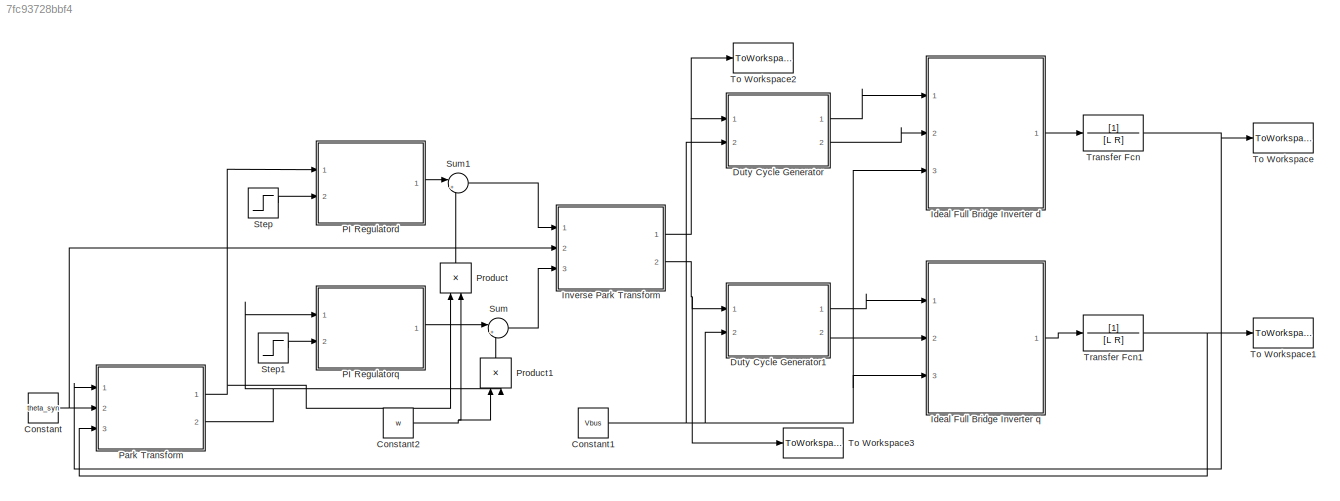
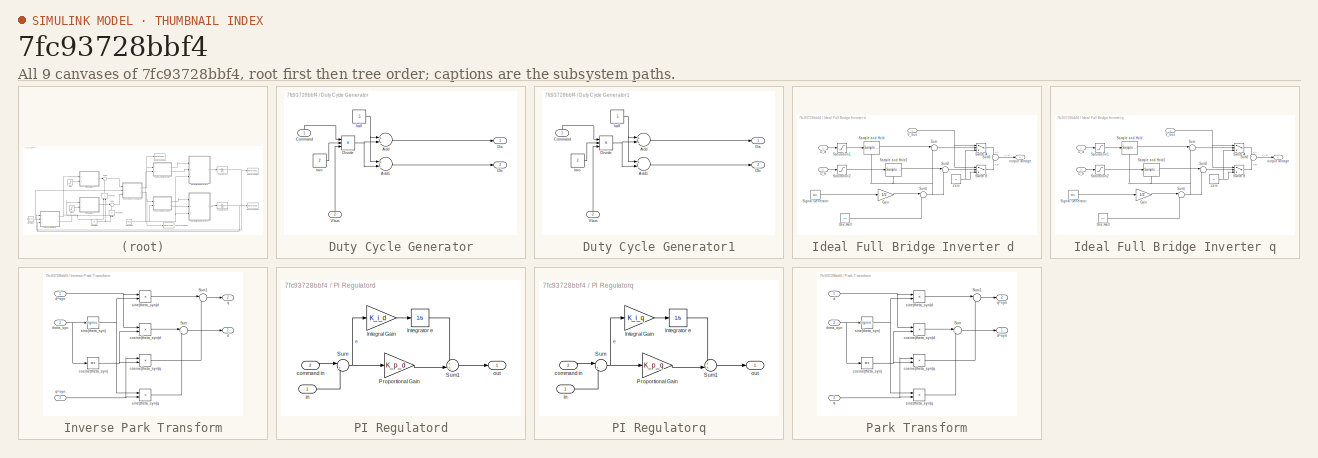
[diagram: thumbnail index - all 9 canvases of the model, root first then tree order]
MODEL slx_7fc93728bbf4
KIND model
CONFIG AbsTol = auto
CONFIG FixedStep = auto
CONFIG MaxStep = auto
CONFIG MinStep = auto
CONFIG RelTol = 1e-3
CONFIG SampleTimeConstraint = Unconstrained
CONFIG Solver = VariableStepAuto
CONFIG SolverMode = Auto
CONFIG SolverName = VariableStepAuto
CONFIG StartTime = -.005
CONFIG StopTime = .5
BLOCK [Constant] Constant
  Value = theta_syn
BLOCK [Constant] Constant1
  Value = Vbus
BLOCK [Constant] Constant2
  Value = w
BLOCK [SubSystem] Duty Cycle Generator
  Ports = [2, 2]
  RequestExecContextInheritance = off
  Variant = off
BLOCK [Sum] Duty Cycle Generator/Add
  InputSameDT = off
  OutDataTypeStr = Inherit: Inherit via internal rule
  Ports = [2, 1]
  SaturateOnIntegerOverflow = off
BLOCK [Sum] Duty Cycle Generator/Add1
  InputSameDT = off
  Inputs = +-
  OutDataTypeStr = Inherit: Inherit via internal rule
  Ports = [2, 1]
  SaturateOnIntegerOverflow = off
BLOCK [Inport] Duty Cycle Generator/Command
  IconDisplay = Port number
BLOCK [Outport] Duty Cycle Generator/Da
  IconDisplay = Port number
BLOCK [Outport] Duty Cycle Generator/Db
  IconDisplay = Port number
  Port = 2
BLOCK [Product] Duty Cycle Generator/Divide
  InputSameDT = off
  Inputs = *//
  OutDataTypeStr = Inherit: Inherit via internal rule
  Ports = [3, 1]
  RndMeth = Floor
  SaturateOnIntegerOverflow = off
BLOCK [Inport] Duty Cycle Generator/Vbus
  IconDisplay = Port number
  Port = 2
BLOCK [Constant] Duty Cycle Generator/half
  Value = .5
BLOCK [Constant] Duty Cycle Generator/two
  Value = 2
BLOCK [SubSystem] Duty Cycle Generator1
  Ports = [2, 2]
  RequestExecContextInheritance = off
  Variant = off
BLOCK [Sum] Duty Cycle Generator1/Add
  InputSameDT = off
  OutDataTypeStr = Inherit: Inherit via internal rule
  Ports = [2, 1]
  SaturateOnIntegerOverflow = off
BLOCK [Sum] Duty Cycle Generator1/Add1
  InputSameDT = off
  Inputs = +-
  OutDataTypeStr = Inherit: Inherit via internal rule
  Ports = [2, 1]
  SaturateOnIntegerOverflow = off
BLOCK [Inport] Duty Cycle Generator1/Command
  IconDisplay = Port number
BLOCK [Outport] Duty Cycle Generator1/Da
  IconDisplay = Port number
BLOCK [Outport] Duty Cycle Generator1/Db
  IconDisplay = Port number
  Port = 2
BLOCK [Product] Duty Cycle Generator1/Divide
  InputSameDT = off
  Inputs = *//
  OutDataTypeStr = Inherit: Inherit via internal rule
  Ports = [3, 1]
  RndMeth = Floor
  SaturateOnIntegerOverflow = off
BLOCK [Inport] Duty Cycle Generator1/Vbus
  IconDisplay = Port number
  Port = 2
BLOCK [Constant] Duty Cycle Generator1/half
  Value = .5
BLOCK [Constant] Duty Cycle Generator1/two
  Value = 2
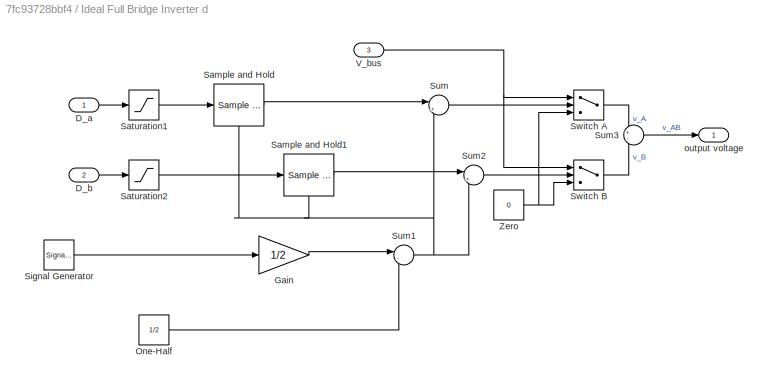
BLOCK [SubSystem] Ideal Full Bridge Inverter d 
  Ports = [3, 1]
  RequestExecContextInheritance = off
  Variant = off
BLOCK [Inport] Ideal Full Bridge Inverter d /D_a
  IconDisplay = Port number
BLOCK [Inport] Ideal Full Bridge Inverter d /D_b
  IconDisplay = Port number
  Port = 2
BLOCK [Gain] Ideal Full Bridge Inverter d /Gain
  Gain = 1/2
BLOCK [Constant] Ideal Full Bridge Inverter d /One-Half
  Value = 1/2
BLOCK [Reference] Ideal Full Bridge Inverter d /Sample and Hold  REF=dspsigops/Sample
and Hold
  Ports = [1, 1, 0, 1]
  SourceBlock = dspsigops/Sample\nand Hold
  SourceType = Sample and Hold
BLOCK [Reference] Ideal Full Bridge Inverter d /Sample and Hold1  REF=dspsigops/Sample
and Hold
  Ports = [1, 1, 0, 1]
  SourceBlock = dspsigops/Sample\nand Hold
  SourceType = Sample and Hold
BLOCK [Saturate] Ideal Full Bridge Inverter d /Saturation1
  InputPortMap = u0
  LowerLimit = 0
  Ports = [1, 1]
  UpperLimit = 1
BLOCK [Saturate] Ideal Full Bridge Inverter d /Saturation2
  InputPortMap = u0
  LowerLimit = 0
  Ports = [1, 1]
  UpperLimit = 1
BLOCK [SignalGenerator] Ideal Full Bridge Inverter d /Signal Generator
  Frequency = f_sw
  Ports = [0, 1]
  WaveForm = sawtooth
BLOCK [Sum] Ideal Full Bridge Inverter d /Sum
  IconShape = round
  InputSameDT = off
  Inputs = |+-
  OutDataTypeStr = Inherit: Inherit via internal rule
  Ports = [2, 1]
BLOCK [Sum] Ideal Full Bridge Inverter d /Sum1
  IconShape = round
  InputSameDT = off
  Inputs = |-+
  OutDataTypeStr = Inherit: Inherit via internal rule
  Ports = [2, 1]
BLOCK [Sum] Ideal Full Bridge Inverter d /Sum2
  IconShape = round
  InputSameDT = off
  Inputs = |+-
  OutDataTypeStr = Inherit: Inherit via internal rule
  Ports = [2, 1]
BLOCK [Sum] Ideal Full Bridge Inverter d /Sum3
  IconShape = round
  InputSameDT = off
  Inputs = +-
  OutDataTypeStr = Inherit: Inherit via internal rule
  Ports = [2, 1]
BLOCK [Switch] Ideal Full Bridge Inverter d /Switch A
  InputSameDT = off
BLOCK [Switch] Ideal Full Bridge Inverter d /Switch B
  InputSameDT = off
BLOCK [Inport] Ideal Full Bridge Inverter d /V_bus
  IconDisplay = Port number
  Port = 3
BLOCK [Constant] Ideal Full Bridge Inverter d /Zero
  Value = 0
BLOCK [Outport] Ideal Full Bridge Inverter d /output voltage
  IconDisplay = Port number
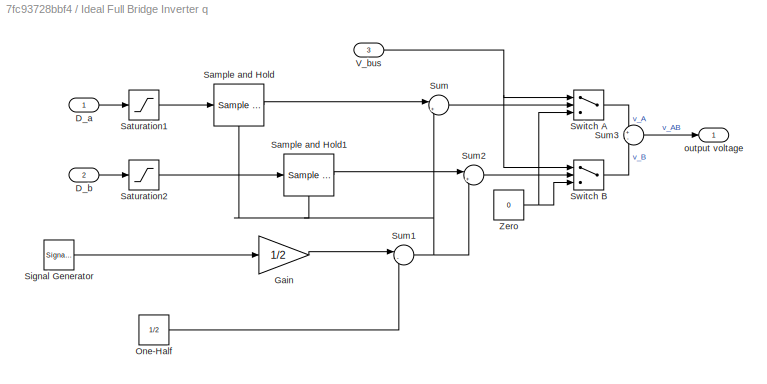
BLOCK [SubSystem] Ideal Full Bridge Inverter q
  Ports = [3, 1]
  RequestExecContextInheritance = off
  Variant = off
BLOCK [Inport] Ideal Full Bridge Inverter q/D_a
  IconDisplay = Port number
BLOCK [Inport] Ideal Full Bridge Inverter q/D_b
  IconDisplay = Port number
  Port = 2
BLOCK [Gain] Ideal Full Bridge Inverter q/Gain
  Gain = 1/2
BLOCK [Constant] Ideal Full Bridge Inverter q/One-Half
  Value = 1/2
BLOCK [Reference] Ideal Full Bridge Inverter q/Sample and Hold  REF=dspsigops/Sample
and Hold
  Ports = [1, 1, 0, 1]
  SourceBlock = dspsigops/Sample\nand Hold
  SourceType = Sample and Hold
BLOCK [Reference] Ideal Full Bridge Inverter q/Sample and Hold1  REF=dspsigops/Sample
and Hold
  Ports = [1, 1, 0, 1]
  SourceBlock = dspsigops/Sample\nand Hold
  SourceType = Sample and Hold
BLOCK [Saturate] Ideal Full Bridge Inverter q/Saturation1
  InputPortMap = u0
  LowerLimit = 0
  Ports = [1, 1]
  UpperLimit = 1
BLOCK [Saturate] Ideal Full Bridge Inverter q/Saturation2
  InputPortMap = u0
  LowerLimit = 0
  Ports = [1, 1]
  UpperLimit = 1
BLOCK [SignalGenerator] Ideal Full Bridge Inverter q/Signal Generator
  Frequency = f_sw
  Ports = [0, 1]
  WaveForm = sawtooth
BLOCK [Sum] Ideal Full Bridge Inverter q/Sum
  IconShape = round
  InputSameDT = off
  Inputs = |+-
  OutDataTypeStr = Inherit: Inherit via internal rule
  Ports = [2, 1]
BLOCK [Sum] Ideal Full Bridge Inverter q/Sum1
  IconShape = round
  InputSameDT = off
  Inputs = |-+
  OutDataTypeStr = Inherit: Inherit via internal rule
  Ports = [2, 1]
BLOCK [Sum] Ideal Full Bridge Inverter q/Sum2
  IconShape = round
  InputSameDT = off
  Inputs = |+-
  OutDataTypeStr = Inherit: Inherit via internal rule
  Ports = [2, 1]
BLOCK [Sum] Ideal Full Bridge Inverter q/Sum3
  IconShape = round
  InputSameDT = off
  Inputs = +-
  OutDataTypeStr = Inherit: Inherit via internal rule
  Ports = [2, 1]
BLOCK [Switch] Ideal Full Bridge Inverter q/Switch A
  InputSameDT = off
BLOCK [Switch] Ideal Full Bridge Inverter q/Switch B
  InputSameDT = off
BLOCK [Inport] Ideal Full Bridge Inverter q/V_bus
  IconDisplay = Port number
  Port = 3
BLOCK [Constant] Ideal Full Bridge Inverter q/Zero
  Value = 0
BLOCK [Outport] Ideal Full Bridge Inverter q/output voltage
  IconDisplay = Port number
BLOCK [SubSystem] Inverse Park Transform
  Ports = [3, 2]
  RequestExecContextInheritance = off
  Variant = off
BLOCK [Sum] Inverse Park Transform/Sum
  IconShape = round
  InputSameDT = off
  Inputs = |+-
  OutDataTypeStr = Inherit: Inherit via internal rule
  Ports = [2, 1]
  SaturateOnIntegerOverflow = off
BLOCK [Sum] Inverse Park Transform/Sum1
  IconShape = round
  InputSameDT = off
  Inputs = |++
  OutDataTypeStr = Inherit: Inherit via internal rule
  Ports = [2, 1]
  SaturateOnIntegerOverflow = off
BLOCK [Trigonometry] Inverse Park Transform/cosine(theta_syn)
  Operator = cos
  Ports = [1, 1]
BLOCK [Product] Inverse Park Transform/cosine(theta_syn)d
  InputSameDT = off
  OutDataTypeStr = Inherit: Inherit via internal rule
  Ports = [2, 1]
  RndMeth = Floor
  SaturateOnIntegerOverflow = off
BLOCK [Product] Inverse Park Transform/cosine(theta_syn)q
  InputSameDT = off
  OutDataTypeStr = Inherit: Inherit via internal rule
  Ports = [2, 1]
  RndMeth = Floor
  SaturateOnIntegerOverflow = off
BLOCK [Outport] Inverse Park Transform/d
  IconDisplay = Port number
BLOCK [Inport] Inverse Park Transform/d^syn
  IconDisplay = Port number
BLOCK [Outport] Inverse Park Transform/q
  IconDisplay = Port number
  Port = 2
BLOCK [Inport] Inverse Park Transform/q^syn
  IconDisplay = Port number
  Port = 3
BLOCK [Trigonometry] Inverse Park Transform/sine(theta_syn)
  Ports = [1, 1]
BLOCK [Product] Inverse Park Transform/sine(theta_syn)d
  InputSameDT = off
  OutDataTypeStr = Inherit: Inherit via internal rule
  Ports = [2, 1]
  RndMeth = Floor
  SaturateOnIntegerOverflow = off
BLOCK [Product] Inverse Park Transform/sine(theta_syn)q
  InputSameDT = off
  OutDataTypeStr = Inherit: Inherit via internal rule
  Ports = [2, 1]
  RndMeth = Floor
  SaturateOnIntegerOverflow = off
BLOCK [Inport] Inverse Park Transform/theta_syn
  IconDisplay = Port number
  Port = 2
BLOCK [SubSystem] PI Regulatord
  Ports = [2, 1]
  RequestExecContextInheritance = off
  Variant = off
BLOCK [Gain] PI Regulatord/Integral Gain
  Gain = K_i_d
BLOCK [Integrator] PI Regulatord/Integrator e
  Ports = [1, 1]
BLOCK [Gain] PI Regulatord/Proportional Gain
  Gain = K_p_d
BLOCK [Sum] PI Regulatord/Sum
  IconShape = round
  InputSameDT = off
  Inputs = |+-
  OutDataTypeStr = Inherit: Inherit via internal rule
  Ports = [2, 1]
BLOCK [Sum] PI Regulatord/Sum1
  IconShape = round
  InputSameDT = off
  Inputs = ++|
  OutDataTypeStr = Inherit: Inherit via internal rule
  Ports = [2, 1]
BLOCK [Inport] PI Regulatord/command in
  IconDisplay = Port number
  Port = 2
BLOCK [Inport] PI Regulatord/in
  IconDisplay = Port number
BLOCK [Outport] PI Regulatord/out
  IconDisplay = Port number
BLOCK [SubSystem] PI Regulatorq
  Ports = [2, 1]
  RequestExecContextInheritance = off
  Variant = off
BLOCK [Gain] PI Regulatorq/Integral Gain
  Gain = K_i_q
BLOCK [Integrator] PI Regulatorq/Integrator e
  Ports = [1, 1]
BLOCK [Gain] PI Regulatorq/Proportional Gain
  Gain = K_p_q
BLOCK [Sum] PI Regulatorq/Sum
  IconShape = round
  InputSameDT = off
  Inputs = |+-
  OutDataTypeStr = Inherit: Inherit via internal rule
  Ports = [2, 1]
BLOCK [Sum] PI Regulatorq/Sum1
  IconShape = round
  InputSameDT = off
  Inputs = ++|
  OutDataTypeStr = Inherit: Inherit via internal rule
  Ports = [2, 1]
BLOCK [Inport] PI Regulatorq/command in
  IconDisplay = Port number
  Port = 2
BLOCK [Inport] PI Regulatorq/in
  IconDisplay = Port number
BLOCK [Outport] PI Regulatorq/out
  IconDisplay = Port number
BLOCK [SubSystem] Park Transform
  Ports = [3, 2]
  RequestExecContextInheritance = off
  Variant = off
BLOCK [Sum] Park Transform/Sum
  IconShape = round
  InputSameDT = off
  Inputs = |++
  OutDataTypeStr = Inherit: Inherit via internal rule
  Ports = [2, 1]
  SaturateOnIntegerOverflow = off
BLOCK [Sum] Park Transform/Sum1
  IconShape = round
  InputSameDT = off
  Inputs = |-+
  OutDataTypeStr = Inherit: Inherit via internal rule
  Ports = [2, 1]
  SaturateOnIntegerOverflow = off
BLOCK [Trigonometry] Park Transform/cosine(theta_syn)
  Operator = cos
  Ports = [1, 1]
BLOCK [Product] Park Transform/cosine(theta_syn)d
  InputSameDT = off
  OutDataTypeStr = Inherit: Inherit via internal rule
  Ports = [2, 1]
  RndMeth = Floor
  SaturateOnIntegerOverflow = off
BLOCK [Product] Park Transform/cosine(theta_syn)q
  InputSameDT = off
  OutDataTypeStr = Inherit: Inherit via internal rule
  Ports = [2, 1]
  RndMeth = Floor
  SaturateOnIntegerOverflow = off
BLOCK [Inport] Park Transform/d
  IconDisplay = Port number
BLOCK [Outport] Park Transform/d^syn
  IconDisplay = Port number
BLOCK [Inport] Park Transform/q
  IconDisplay = Port number
  Port = 3
BLOCK [Outport] Park Transform/q^syn
  IconDisplay = Port number
  Port = 2
BLOCK [Trigonometry] Park Transform/sine(theta_syn)
  Ports = [1, 1]
BLOCK [Product] Park Transform/sine(theta_syn)d
  InputSameDT = off
  OutDataTypeStr = Inherit: Inherit via internal rule
  Ports = [2, 1]
  RndMeth = Floor
  SaturateOnIntegerOverflow = off
BLOCK [Product] Park Transform/sine(theta_syn)q
  InputSameDT = off
  OutDataTypeStr = Inherit: Inherit via internal rule
  Ports = [2, 1]
  RndMeth = Floor
  SaturateOnIntegerOverflow = off
BLOCK [Inport] Park Transform/theta_syn
  IconDisplay = Port number
  Port = 2
BLOCK [Product] Product
  InputSameDT = off
  OutDataTypeStr = Inherit: Inherit via internal rule
  Ports = [2, 1]
  RndMeth = Floor
  SaturateOnIntegerOverflow = off
BLOCK [Product] Product1
  InputSameDT = off
  OutDataTypeStr = Inherit: Inherit via internal rule
  Ports = [2, 1]
  RndMeth = Floor
  SaturateOnIntegerOverflow = off
BLOCK [Step] Step
  After = Id_step
  SampleTime = 0
  Time = 0
BLOCK [Step] Step1
  After = Iq_step
  SampleTime = 0
  Time = 0
BLOCK [Sum] Sum
  IconShape = round
  InputSameDT = off
  Inputs = |++
  OutDataTypeStr = Inherit: Inherit via internal rule
  Ports = [2, 1]
  SaturateOnIntegerOverflow = off
BLOCK [Sum] Sum1
  IconShape = round
  InputSameDT = off
  Inputs = |+-
  OutDataTypeStr = Inherit: Inherit via internal rule
  Ports = [2, 1]
  SaturateOnIntegerOverflow = off
BLOCK [ToWorkspace] To Workspace
  FixptAsFi = on
  MaxDataPoints = inf
  Ports = [1]
  SampleTime = -1
  Save2DSignal = 3-D array (concatenate along third dimension)
  VariableName = Id_simout
BLOCK [ToWorkspace] To Workspace1
  FixptAsFi = on
  MaxDataPoints = inf
  Ports = [1]
  SampleTime = -1
  Save2DSignal = 3-D array (concatenate along third dimension)
  VariableName = Iq_simout
BLOCK [ToWorkspace] To Workspace2
  FixptAsFi = on
  MaxDataPoints = inf
  Ports = [1]
  SampleTime = -1
  Save2DSignal = 3-D array (concatenate along third dimension)
  VariableName = Vd_command
BLOCK [ToWorkspace] To Workspace3
  FixptAsFi = on
  MaxDataPoints = inf
  Ports = [1]
  SampleTime = -1
  Save2DSignal = 3-D array (concatenate along third dimension)
  VariableName = Vq_command
BLOCK [TransferFcn] Transfer Fcn
  Denominator = [L R]
BLOCK [TransferFcn] Transfer Fcn1
  Denominator = [L R]
NET Constant1:1 -> Duty Cycle Generator1:2, Duty Cycle Generator:2, Ideal Full Bridge Inverter d :3, Ideal Full Bridge Inverter q:3
NET Constant2:1 -> Product1:1, Product:2
NET Constant:1 -> Inverse Park Transform:2, Park Transform:2
LINE Duty Cycle Generator/Add1:1 -> Duty Cycle Generator/Db:1
LINE Duty Cycle Generator/Add:1 -> Duty Cycle Generator/Da:1
LINE Duty Cycle Generator/Command:1 -> Duty Cycle Generator/Divide:1
NET Duty Cycle Generator/Divide:1 -> Duty Cycle Generator/Add1:2, Duty Cycle Generator/Add:2
LINE Duty Cycle Generator/Vbus:1 -> Duty Cycle Generator/Divide:3
NET Duty Cycle Generator/half:1 -> Duty Cycle Generator/Add1:1, Duty Cycle Generator/Add:1
LINE Duty Cycle Generator/two:1 -> Duty Cycle Generator/Divide:2
LINE Duty Cycle Generator1/Add1:1 -> Duty Cycle Generator1/Db:1
LINE Duty Cycle Generator1/Add:1 -> Duty Cycle Generator1/Da:1
LINE Duty Cycle Generator1/Command:1 -> Duty Cycle Generator1/Divide:1
NET Duty Cycle Generator1/Divide:1 -> Duty Cycle Generator1/Add1:2, Duty Cycle Generator1/Add:2
LINE Duty Cycle Generator1/Vbus:1 -> Duty Cycle Generator1/Divide:3
NET Duty Cycle Generator1/half:1 -> Duty Cycle Generator1/Add1:1, Duty Cycle Generator1/Add:1
LINE Duty Cycle Generator1/two:1 -> Duty Cycle Generator1/Divide:2
LINE Duty Cycle Generator1:1 -> Ideal Full Bridge Inverter q:1
LINE Duty Cycle Generator1:2 -> Ideal Full Bridge Inverter q:2
LINE Duty Cycle Generator:1 -> Ideal Full Bridge Inverter d :1
LINE Duty Cycle Generator:2 -> Ideal Full Bridge Inverter d :2
LINE Ideal Full Bridge Inverter d /D_a:1 -> Ideal Full Bridge Inverter d /Saturation1:1
LINE Ideal Full Bridge Inverter d /D_b:1 -> Ideal Full Bridge Inverter d /Saturation2:1
LINE Ideal Full Bridge Inverter d /Gain:1 -> Ideal Full Bridge Inverter d /Sum1:1
LINE Ideal Full Bridge Inverter d /One-Half:1 -> Ideal Full Bridge Inverter d /Sum1:2
LINE Ideal Full Bridge Inverter d /Sample and Hold1:1 -> Ideal Full Bridge Inverter d /Sum2:1
LINE Ideal Full Bridge Inverter d /Sample and Hold:1 -> Ideal Full Bridge Inverter d /Sum:1
LINE Ideal Full Bridge Inverter d /Saturation1:1 -> Ideal Full Bridge Inverter d /Sample and Hold:1
LINE Ideal Full Bridge Inverter d /Saturation2:1 -> Ideal Full Bridge Inverter d /Sample and Hold1:1
LINE Ideal Full Bridge Inverter d /Signal Generator:1 -> Ideal Full Bridge Inverter d /Gain:1
NET Ideal Full Bridge Inverter d /Sum1:1 -> Ideal Full Bridge Inverter d /Sample and Hold1:trigger, Ideal Full Bridge Inverter d /Sample and Hold:trigger, Ideal Full Bridge Inverter d /Sum2:2, Ideal Full Bridge Inverter d /Sum:2
LINE Ideal Full Bridge Inverter d /Sum2:1 -> Ideal Full Bridge Inverter d /Switch B:2
LINE Ideal Full Bridge Inverter d /Sum3:1 -> Ideal Full Bridge Inverter d /output voltage:1
LINE Ideal Full Bridge Inverter d /Sum:1 -> Ideal Full Bridge Inverter d /Switch A:2
LINE Ideal Full Bridge Inverter d /Switch A:1 -> Ideal Full Bridge Inverter d /Sum3:1
LINE Ideal Full Bridge Inverter d /Switch B:1 -> Ideal Full Bridge Inverter d /Sum3:2
NET Ideal Full Bridge Inverter d /V_bus:1 -> Ideal Full Bridge Inverter d /Switch A:1, Ideal Full Bridge Inverter d /Switch B:1
NET Ideal Full Bridge Inverter d /Zero:1 -> Ideal Full Bridge Inverter d /Switch A:3, Ideal Full Bridge Inverter d /Switch B:3
LINE Ideal Full Bridge Inverter d :1 -> Transfer Fcn:1
LINE Ideal Full Bridge Inverter q/D_a:1 -> Ideal Full Bridge Inverter q/Saturation1:1
LINE Ideal Full Bridge Inverter q/D_b:1 -> Ideal Full Bridge Inverter q/Saturation2:1
LINE Ideal Full Bridge Inverter q/Gain:1 -> Ideal Full Bridge Inverter q/Sum1:1
LINE Ideal Full Bridge Inverter q/One-Half:1 -> Ideal Full Bridge Inverter q/Sum1:2
LINE Ideal Full Bridge Inverter q/Sample and Hold1:1 -> Ideal Full Bridge Inverter q/Sum2:1
LINE Ideal Full Bridge Inverter q/Sample and Hold:1 -> Ideal Full Bridge Inverter q/Sum:1
LINE Ideal Full Bridge Inverter q/Saturation1:1 -> Ideal Full Bridge Inverter q/Sample and Hold:1
LINE Ideal Full Bridge Inverter q/Saturation2:1 -> Ideal Full Bridge Inverter q/Sample and Hold1:1
LINE Ideal Full Bridge Inverter q/Signal Generator:1 -> Ideal Full Bridge Inverter q/Gain:1
NET Ideal Full Bridge Inverter q/Sum1:1 -> Ideal Full Bridge Inverter q/Sample and Hold1:trigger, Ideal Full Bridge Inverter q/Sample and Hold:trigger, Ideal Full Bridge Inverter q/Sum2:2, Ideal Full Bridge Inverter q/Sum:2
LINE Ideal Full Bridge Inverter q/Sum2:1 -> Ideal Full Bridge Inverter q/Switch B:2
LINE Ideal Full Bridge Inverter q/Sum3:1 -> Ideal Full Bridge Inverter q/output voltage:1
LINE Ideal Full Bridge Inverter q/Sum:1 -> Ideal Full Bridge Inverter q/Switch A:2
LINE Ideal Full Bridge Inverter q/Switch A:1 -> Ideal Full Bridge Inverter q/Sum3:1
LINE Ideal Full Bridge Inverter q/Switch B:1 -> Ideal Full Bridge Inverter q/Sum3:2
NET Ideal Full Bridge Inverter q/V_bus:1 -> Ideal Full Bridge Inverter q/Switch A:1, Ideal Full Bridge Inverter q/Switch B:1
NET Ideal Full Bridge Inverter q/Zero:1 -> Ideal Full Bridge Inverter q/Switch A:3, Ideal Full Bridge Inverter q/Switch B:3
LINE Ideal Full Bridge Inverter q:1 -> Transfer Fcn1:1
LINE Inverse Park Transform/Sum1:1 -> Inverse Park Transform/q:1
LINE Inverse Park Transform/Sum:1 -> Inverse Park Transform/d:1
NET Inverse Park Transform/cosine(theta_syn):1 -> Inverse Park Transform/cosine(theta_syn)d:2, Inverse Park Transform/cosine(theta_syn)q:2
LINE Inverse Park Transform/cosine(theta_syn)d:1 -> Inverse Park Transform/Sum:1
LINE Inverse Park Transform/cosine(theta_syn)q:1 -> Inverse Park Transform/Sum1:2
NET Inverse Park Transform/d^syn:1 -> Inverse Park Transform/cosine(theta_syn)d:1, Inverse Park Transform/sine(theta_syn)d:1
NET Inverse Park Transform/q^syn:1 -> Inverse Park Transform/cosine(theta_syn)q:1, Inverse Park Transform/sine(theta_syn)q:2
NET Inverse Park Transform/sine(theta_syn):1 -> Inverse Park Transform/sine(theta_syn)d:2, Inverse Park Transform/sine(theta_syn)q:1
LINE Inverse Park Transform/sine(theta_syn)d:1 -> Inverse Park Transform/Sum1:1
LINE Inverse Park Transform/sine(theta_syn)q:1 -> Inverse Park Transform/Sum:2
NET Inverse Park Transform/theta_syn:1 -> Inverse Park Transform/cosine(theta_syn):1, Inverse Park Transform/sine(theta_syn):1
NET Inverse Park Transform:1 -> Duty Cycle Generator:1, To Workspace2:1
NET Inverse Park Transform:2 -> Duty Cycle Generator1:1, To Workspace3:1
LINE PI Regulatord/Integral Gain:1 -> PI Regulatord/Integrator e:1
LINE PI Regulatord/Integrator e:1 -> PI Regulatord/Sum1:1
LINE PI Regulatord/Proportional Gain:1 -> PI Regulatord/Sum1:2
LINE PI Regulatord/Sum1:1 -> PI Regulatord/out:1
NET PI Regulatord/Sum:1 -> PI Regulatord/Integral Gain:1, PI Regulatord/Proportional Gain:1
LINE PI Regulatord/command in:1 -> PI Regulatord/Sum:1
LINE PI Regulatord/in:1 -> PI Regulatord/Sum:2
LINE PI Regulatord:1 -> Sum1:1
LINE PI Regulatorq/Integral Gain:1 -> PI Regulatorq/Integrator e:1
LINE PI Regulatorq/Integrator e:1 -> PI Regulatorq/Sum1:1
LINE PI Regulatorq/Proportional Gain:1 -> PI Regulatorq/Sum1:2
LINE PI Regulatorq/Sum1:1 -> PI Regulatorq/out:1
NET PI Regulatorq/Sum:1 -> PI Regulatorq/Integral Gain:1, PI Regulatorq/Proportional Gain:1
LINE PI Regulatorq/command in:1 -> PI Regulatorq/Sum:1
LINE PI Regulatorq/in:1 -> PI Regulatorq/Sum:2
LINE PI Regulatorq:1 -> Sum:1
LINE Park Transform/Sum1:1 -> Park Transform/q^syn:1
LINE Park Transform/Sum:1 -> Park Transform/d^syn:1
NET Park Transform/cosine(theta_syn):1 -> Park Transform/cosine(theta_syn)d:2, Park Transform/cosine(theta_syn)q:2
LINE Park Transform/cosine(theta_syn)d:1 -> Park Transform/Sum:1
LINE Park Transform/cosine(theta_syn)q:1 -> Park Transform/Sum1:2
NET Park Transform/d:1 -> Park Transform/cosine(theta_syn)d:1, Park Transform/sine(theta_syn)d:1
NET Park Transform/q:1 -> Park Transform/cosine(theta_syn)q:1, Park Transform/sine(theta_syn)q:2
NET Park Transform/sine(theta_syn):1 -> Park Transform/sine(theta_syn)d:2, Park Transform/sine(theta_syn)q:1
LINE Park Transform/sine(theta_syn)d:1 -> Park Transform/Sum1:1
LINE Park Transform/sine(theta_syn)q:1 -> Park Transform/Sum:2
NET Park Transform/theta_syn:1 -> Park Transform/cosine(theta_syn):1, Park Transform/sine(theta_syn):1
NET Park Transform:1 -> PI Regulatord:1, Product:1
NET Park Transform:2 -> PI Regulatorq:1, Product1:2
LINE Product1:1 -> Sum:2
LINE Product:1 -> Sum1:2
LINE Step1:1 -> PI Regulatorq:2
LINE Step:1 -> PI Regulatord:2
LINE Sum1:1 -> Inverse Park Transform:1
LINE Sum:1 -> Inverse Park Transform:3
NET Transfer Fcn1:1 -> Park Transform:3, To Workspace1:1
NET Transfer Fcn:1 -> Park Transform:1, To Workspace:1
note: NET lines group one-source signal fan-out (src -> all destinations, sorted); 1:1 wires keep LINE
